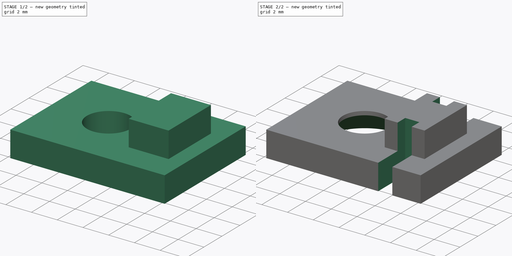
[diagram: build sequence overview — one tinted view per stage of 2, left to right]
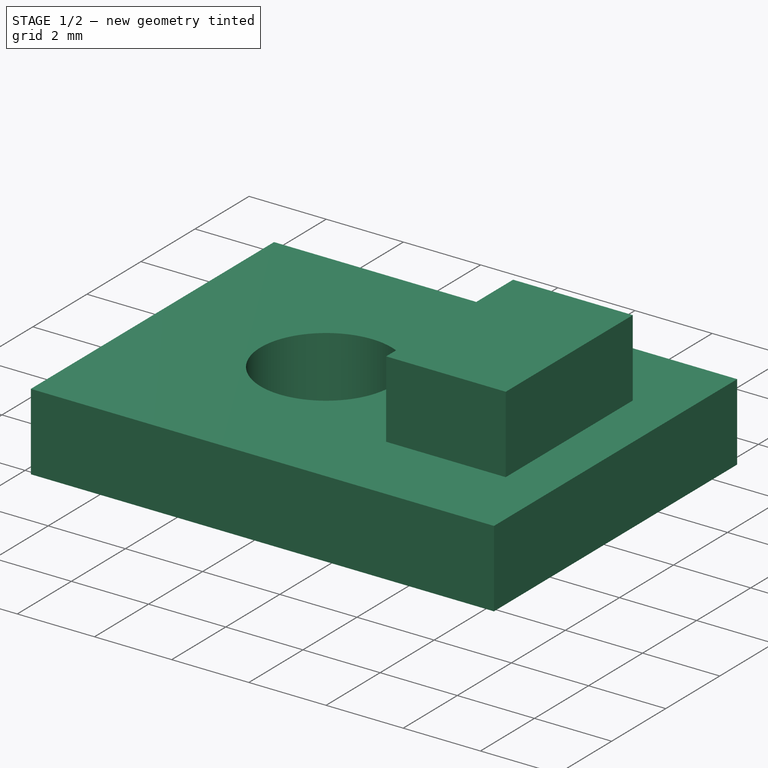
[diagram: stage 1 of 2 — iso view after this stage's code; geometry added in this stage tinted green]
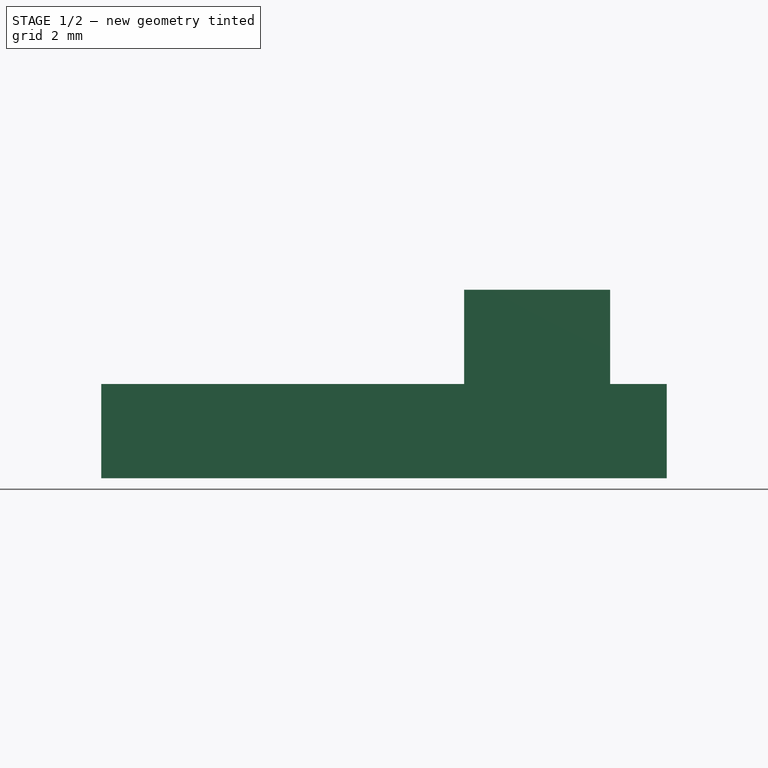
[diagram: stage 1 of 2 — front view after this stage's code; geometry added in this stage tinted green]
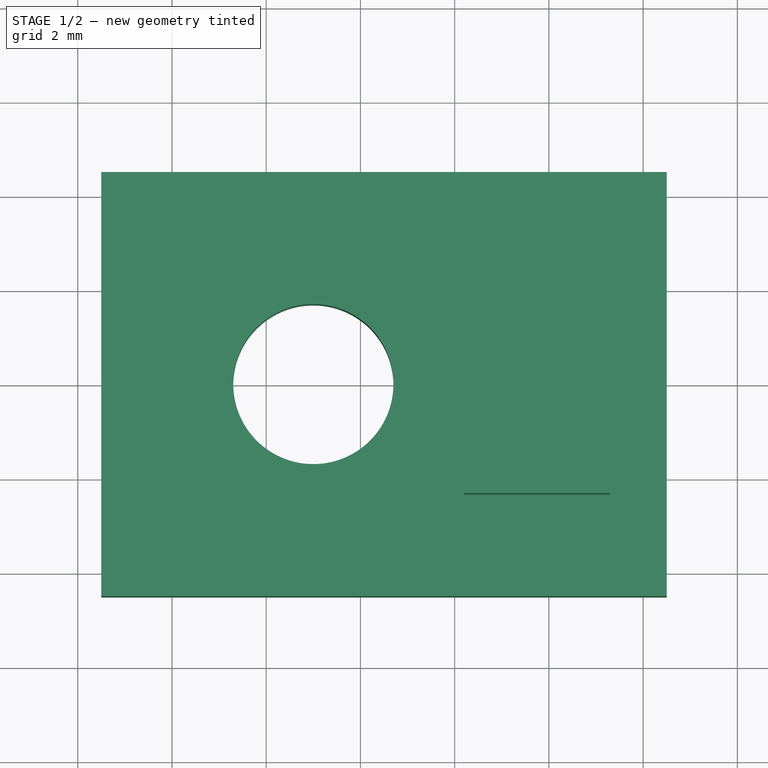
[diagram: stage 1 of 2 — top view after this stage's code; geometry added in this stage tinted green]
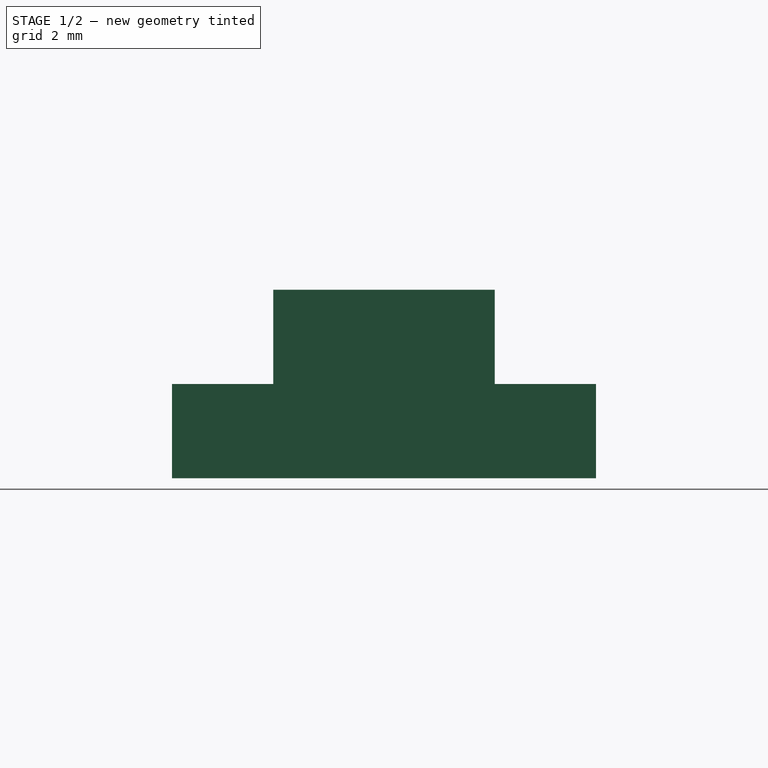
[diagram: stage 1 of 2 — right view after this stage's code; geometry added in this stage tinted green]
FCSTD DOCUMENT  (FreeCAD 0.16R6706 (Git))
Label: TempSensorCover
License: All rights reserved
LicenseURL: http://en.wikipedia.org/wiki/All_rights_reserved
objects: Sketcher::SketchObject×3, PartDesign::Pad×2, PartDesign::Pocket×1, PartDesign::Chamfer×1
note: 10 computed .brp shape members not serialized (recipe doc carries the construction recipe); baked Part::Feature solids carry a one-line shape summary decoded from their .brp

FEATURE [Sketcher::SketchObject] Sketch
  sketch-geometry (9):
    g0: LineSegment StartX=-7.5 StartY=4.5 StartZ=0 EndX=4.5 EndY=4.5 EndZ=0
    g1: LineSegment StartX=4.5 StartY=4.5 StartZ=0 EndX=4.5 EndY=-4.5 EndZ=0
    g2: LineSegment StartX=4.5 StartY=-4.5 StartZ=0 EndX=-7.5 EndY=-4.5 EndZ=0
    g3: LineSegment StartX=-7.5 StartY=-4.5 StartZ=0 EndX=-7.5 EndY=4.5 EndZ=0
    g4: Circle CenterX=-3 CenterY=0 CenterZ=0 NormalX=0 NormalY=0 NormalZ=1 Radius=1.7
    g5: LineSegment [constr] StartX=0.2 StartY=2.35 StartZ=0 EndX=3.3 EndY=2.35 EndZ=0
    g6: LineSegment [constr] StartX=3.3 StartY=2.35 StartZ=0 EndX=3.3 EndY=-2.35 EndZ=0
    g7: LineSegment [constr] StartX=3.3 StartY=-2.35 StartZ=0 EndX=0.2 EndY=-2.35 EndZ=0
    g8: LineSegment [constr] StartX=0.2 StartY=-2.35 StartZ=0 EndX=0.2 EndY=2.35 EndZ=0
  constraints (27):
    c: Coincident(g0,g1)
    c: Coincident(g1,g2)
    c: Coincident(g2,g3)
    c: Coincident(g3,g0)
    c: Horizontal(g0)
    c: Horizontal(g2)
    c: Vertical(g1)
    c: Vertical(g3)
    c: Radius(g4) = 1.7
    c: PointOnObject(g4,g-1)
    c: DistanceX(g4,g-1) = 3
    c: Symmetric(g1,g0,g-1)
    c: DistanceX(g0,g-1) = 7.5
    c: Coincident(g5,g6)
    c: Coincident(g6,g7)
    c: Coincident(g7,g8)
    c: Coincident(g8,g5)
    c: Horizontal(g5)
    c: Horizontal(g7)
    c: Vertical(g6)
    c: Vertical(g8)
    c: DistanceY(g1,g0) = 9
    c: Symmetric(g5,g7,g-1)
    c: DistanceX(g-1,g7) = 0.2
    c: DistanceX(g7,g6) = 3.1
    c: DistanceY(g6,g5) = 4.7
    c: DistanceX(g-1,g1) = 4.5
FEATURE [PartDesign::Pad] Pad
  Length = 2
  Length2 = 100
  Sketch = -> Sketch
  Type = 0
FEATURE [Sketcher::SketchObject] Sketch001
  Placement = pos=(0,0,2) rot=(0,0,1;0rad)
  Support = -> Pad [Face7]
  sketch-geometry (4):
    g0: LineSegment StartX=0.2 StartY=2.35 StartZ=0 EndX=3.3 EndY=2.35 EndZ=0
    g1: LineSegment StartX=3.3 StartY=2.35 StartZ=0 EndX=3.3 EndY=-2.35 EndZ=0
    g2: LineSegment StartX=3.3 StartY=-2.35 StartZ=0 EndX=0.2 EndY=-2.35 EndZ=0
    g3: LineSegment StartX=0.2 StartY=-2.35 StartZ=0 EndX=0.2 EndY=2.35 EndZ=0
  constraints (12):
    c: Coincident(g0,g1)
    c: Coincident(g1,g2)
    c: Coincident(g2,g3)
    c: Coincident(g3,g0)
    c: Horizontal(g0)
    c: Horizontal(g2)
    c: Vertical(g1)
    c: Vertical(g3)
    c: Symmetric(g1,g0,g-1)
    c: DistanceY(g1,g0) = 4.7
    c: DistanceX(g-1,g2) = 0.2
    c: DistanceX(g2,g1) = 3.1
FEATURE [PartDesign::Pad] Pad001
  Length = 2
  Length2 = 100
  Sketch = -> Sketch001
  Type = 0
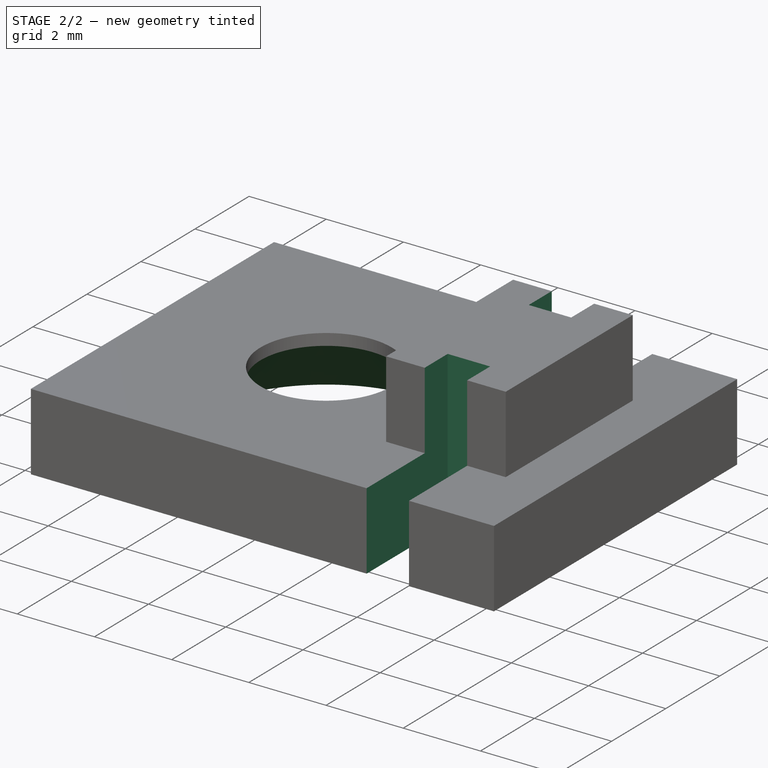
[diagram: stage 2 of 2 — iso view after this stage's code; geometry added in this stage tinted green]
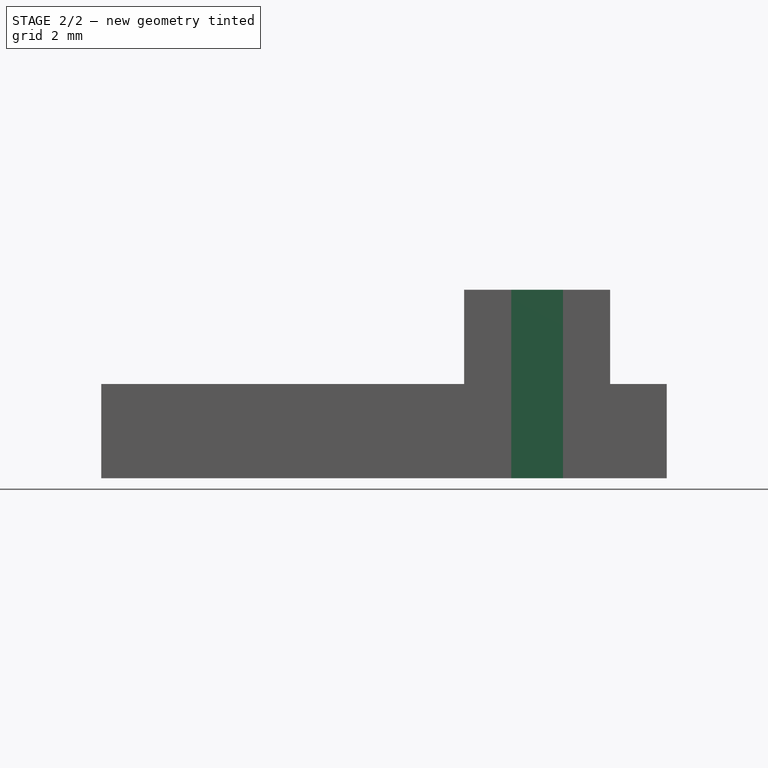
[diagram: stage 2 of 2 — front view after this stage's code; geometry added in this stage tinted green]
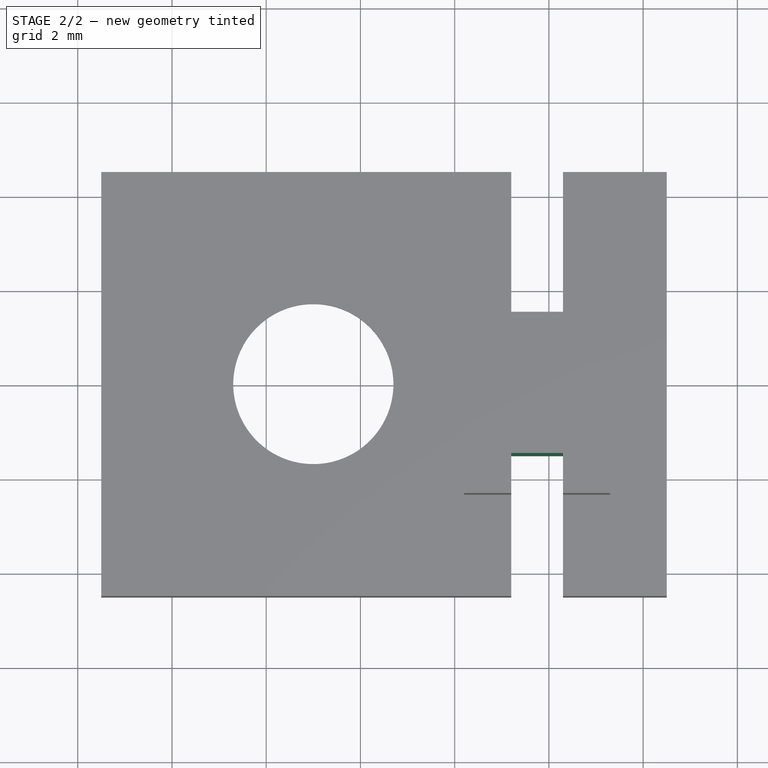
[diagram: stage 2 of 2 — top view after this stage's code; geometry added in this stage tinted green]
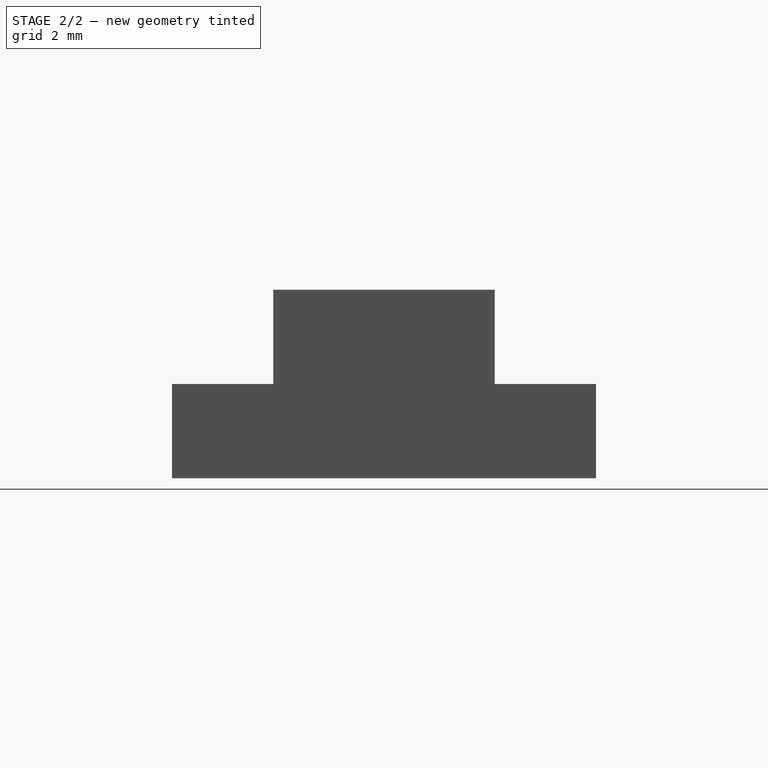
[diagram: stage 2 of 2 — right view after this stage's code; geometry added in this stage tinted green]
FEATURE [Sketcher::SketchObject] Sketch002
  Placement = pos=(0,0,4) rot=(0,0,1;0rad)
  Support = -> Pad001 [Face12]
  sketch-geometry (9):
    g0: LineSegment StartX=1.2 StartY=6.5 StartZ=0 EndX=2.3 EndY=6.5 EndZ=0
    g1: LineSegment StartX=2.3 StartY=6.5 StartZ=0 EndX=2.3 EndY=1.5 EndZ=0
    g2: LineSegment StartX=2.3 StartY=1.5 StartZ=0 EndX=1.2 EndY=1.5 EndZ=0
    g3: LineSegment StartX=1.2 StartY=1.5 StartZ=0 EndX=1.2 EndY=6.5 EndZ=0
    g4: LineSegment StartX=1.2 StartY=-1.5 StartZ=0 EndX=2.3 EndY=-1.5 EndZ=0
    g5: LineSegment StartX=2.3 StartY=-1.5 StartZ=0 EndX=2.3 EndY=-6.5 EndZ=0
    g6: LineSegment StartX=2.3 StartY=-6.5 StartZ=0 EndX=1.2 EndY=-6.5 EndZ=0
    g7: LineSegment StartX=1.2 StartY=-6.5 StartZ=0 EndX=1.2 EndY=-1.5 EndZ=0
    g8: GeomPoint [constr] X=1.75 Y=0 Z=0
  constraints (23):
    c: Coincident(g0,g1)
    c: Coincident(g1,g2)
    c: Coincident(g2,g3)
    c: Coincident(g3,g0)
    c: Horizontal(g0)
    c: Horizontal(g2)
    c: Vertical(g1)
    c: Vertical(g3)
    c: Coincident(g4,g5)
    c: Coincident(g5,g6)
    c: Coincident(g6,g7)
    c: Coincident(g7,g4)
    c: Horizontal(g4)
    c: Horizontal(g6)
    c: Vertical(g5)
    c: Vertical(g7)
    c: Symmetric(g4,g1,g-1)
    c: Symmetric(g6,g0,g-1)
    c: Symmetric(g1,g4,g8)
    c: DistanceX(g-1,g8) = 1.75
    c: DistanceX(g2,g1) = 1.1
    c: DistanceY(g4,g1) = 3
    c: DistanceY(g5,g4) = 5
FEATURE [PartDesign::Pocket] Pocket
  Length = 5
  Sketch = -> Sketch002
  Type = 1
FEATURE [PartDesign::Chamfer] Chamfer
  Base = -> Pocket [Edge16]
  Size = 1.7
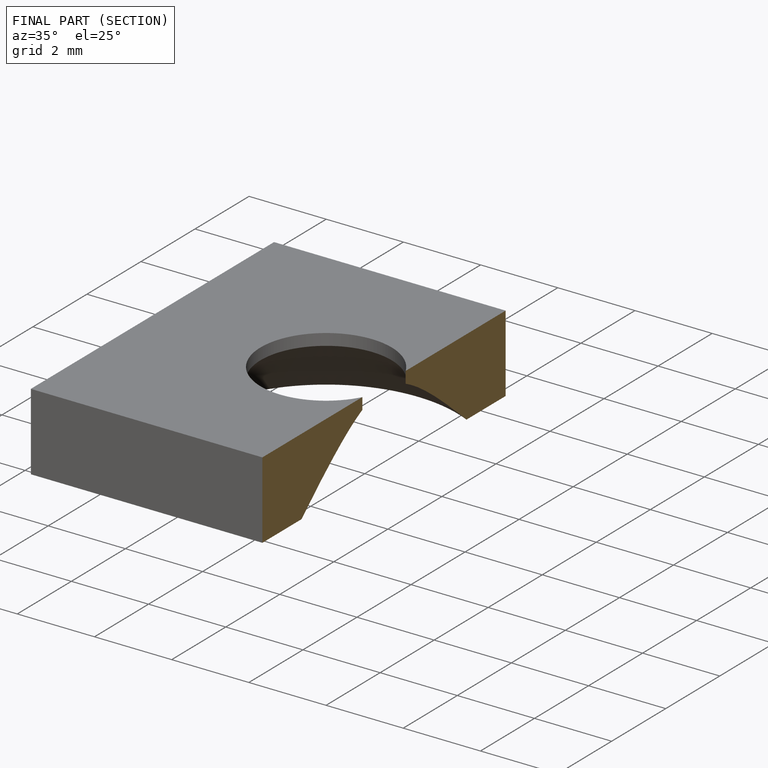
[diagram: finished part — half-section view (interior)]
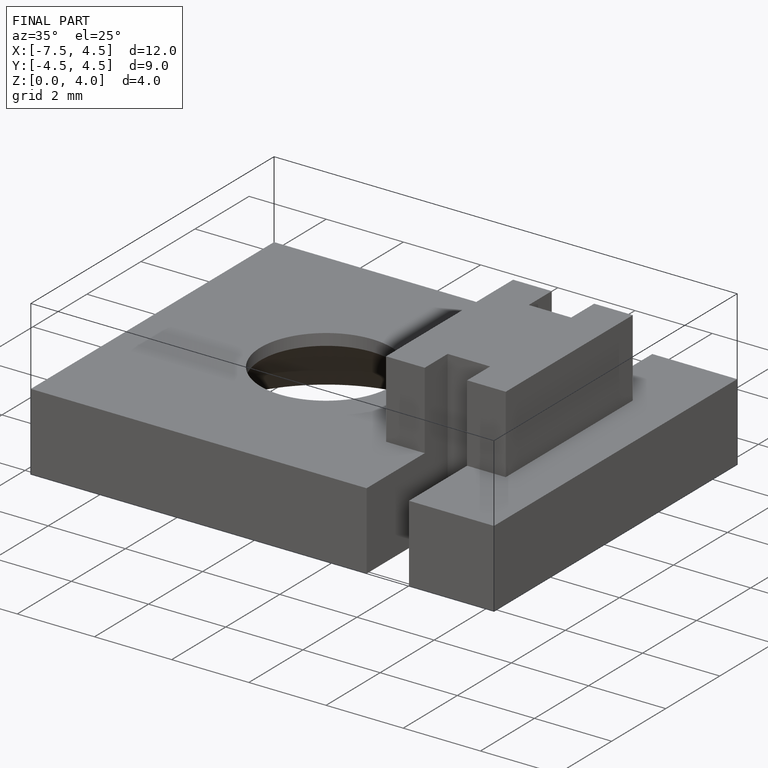
[diagram: finished part — iso view with bounding-box wireframe]
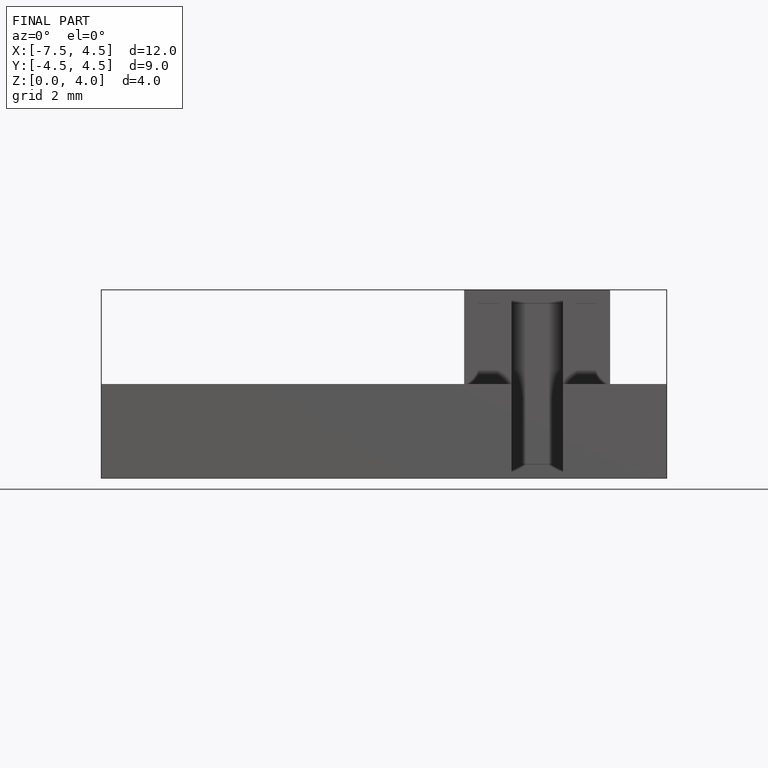
[diagram: finished part — front view with bounding-box wireframe]
